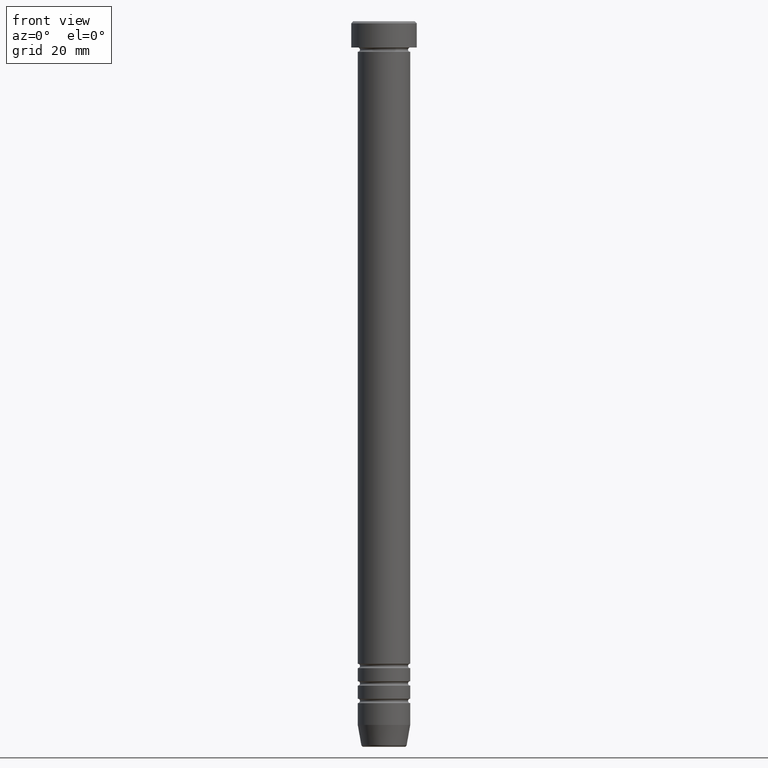
[diagram: clean part render]
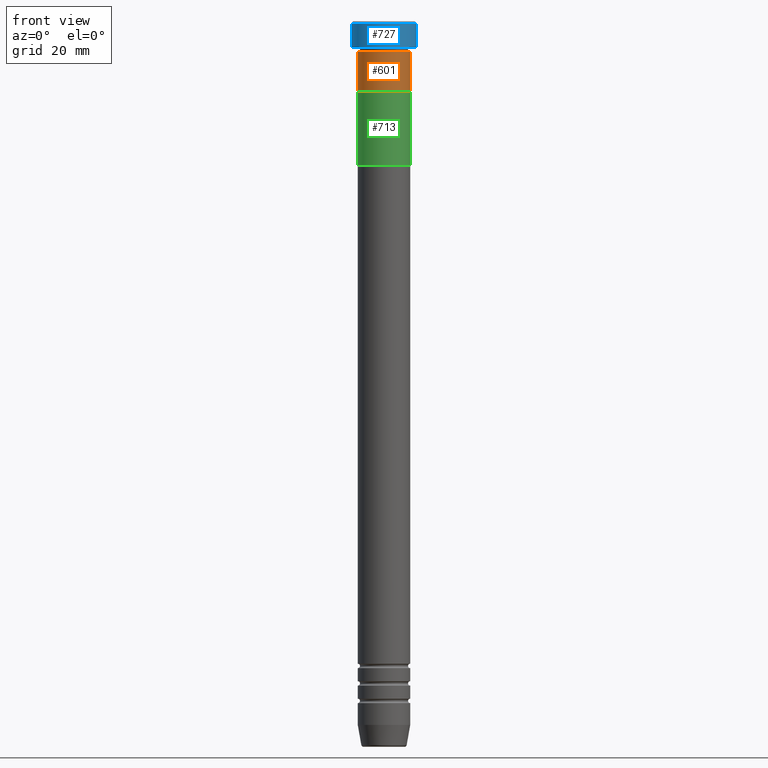
[diagram: same view with three faces highlighted in distinct colors, each labeled with its STEP entity id]
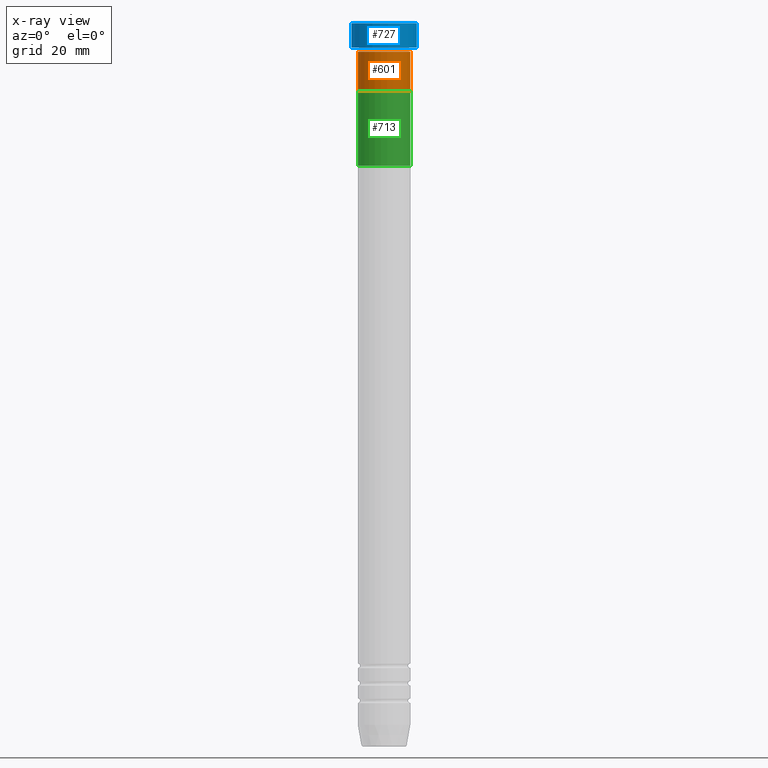
[diagram: x-ray of the same camera — body ghosted, the three highlighted faces saturated]
A machine part, front view with three faces highlighted in distinct colors.
The next image is the same camera in x-ray (body ghosted, the three faces saturated) — at least one of them is partly hidden behind the body in this view.
Their STEP definitions:

[orange] entity #601 — the highlighted cylindrical surface (edge-blend (fillet) strip) has radius 6 mm, axis along (-0, -0, 1).
#44 = AXIS2_PLACEMENT_3D ( 'NONE', #441, #325, #671 ) ;
#78 = CARTESIAN_POINT ( 'NONE',  ( -6.000000000000000000, 7.347880794884119736E-16, 0.000000000000000000 ) ) ;
#128 = EDGE_LOOP ( 'NONE', ( #793, #964, #180, #500 ) ) ;
#154 = EDGE_CURVE ( 'NONE', #462, #562, #829, .T. ) ;
#156 = LINE ( 'NONE', #505, #396 ) ;
#160 = VERTEX_POINT ( 'NONE', #1127 ) ;
#180 = ORIENTED_EDGE ( 'NONE', *, *, #595, .T. ) ;
#197 = DIRECTION ( 'NONE',  ( -0.000000000000000000, -0.000000000000000000, 1.000000000000000000 ) ) ;
#231 = CIRCLE ( 'NONE', #44, 6.000000000000000000 ) ;
#234 = VECTOR ( 'NONE', #197, 1000.000000000000000 ) ;
#269 = CARTESIAN_POINT ( 'NONE',  ( 6.000000000000000000, 0.000000000000000000, -7.000000000000000888 ) ) ;
#279 = DIRECTION ( 'NONE',  ( 1.000000000000000000, 0.000000000000000000, 0.000000000000000000 ) ) ;
#283 = AXIS2_PLACEMENT_3D ( 'NONE', #390, #646, #1035 ) ;
#286 = AXIS2_PLACEMENT_3D ( 'NONE', #438, #905, #279 ) ;
#325 = DIRECTION ( 'NONE',  ( -0.000000000000000000, -0.000000000000000000, 1.000000000000000000 ) ) ;
#390 = CARTESIAN_POINT ( 'NONE',  ( 0.000000000000000000, 0.000000000000000000, -16.00000000000000000 ) ) ;
#396 = VECTOR ( 'NONE', #855, 1000.000000000000000 ) ;
#408 = CARTESIAN_POINT ( 'NONE',  ( -6.000000000000000000, 7.347880794884119736E-16, -16.00000000000000000 ) ) ;
#438 = CARTESIAN_POINT ( 'NONE',  ( 0.000000000000000000, 0.000000000000000000, 0.000000000000000000 ) ) ;
#441 = CARTESIAN_POINT ( 'NONE',  ( 0.000000000000000000, 0.000000000000000000, -7.000000000000000888 ) ) ;
#462 = VERTEX_POINT ( 'NONE', #408 ) ;
#500 = ORIENTED_EDGE ( 'NONE', *, *, #580, .F. ) ;
#505 = CARTESIAN_POINT ( 'NONE',  ( 6.000000000000000000, 0.000000000000000000, 0.000000000000000000 ) ) ;
#519 = LINE ( 'NONE', #78, #234 ) ;
#527 = CYLINDRICAL_SURFACE ( 'NONE', #286, 6.000000000000000000 ) ;
#562 = VERTEX_POINT ( 'NONE', #1063 ) ;
#576 = VERTEX_POINT ( 'NONE', #269 ) ;
#580 = EDGE_CURVE ( 'NONE', #160, #576, #231, .T. ) ;
#595 = EDGE_CURVE ( 'NONE', #562, #576, #156, .T. ) ;
#601 = ADVANCED_FACE ( 'NONE', ( #1081 ), #527, .T. ) ;
#646 = DIRECTION ( 'NONE',  ( -0.000000000000000000, -0.000000000000000000, 1.000000000000000000 ) ) ;
#671 = DIRECTION ( 'NONE',  ( 1.000000000000000000, 0.000000000000000000, 0.000000000000000000 ) ) ;
#793 = ORIENTED_EDGE ( 'NONE', *, *, #1038, .F. ) ;
#829 = CIRCLE ( 'NONE', #283, 6.000000000000000000 ) ;
#855 = DIRECTION ( 'NONE',  ( -0.000000000000000000, -0.000000000000000000, 1.000000000000000000 ) ) ;
#905 = DIRECTION ( 'NONE',  ( -0.000000000000000000, -0.000000000000000000, 1.000000000000000000 ) ) ;
#964 = ORIENTED_EDGE ( 'NONE', *, *, #154, .T. ) ;
#1035 = DIRECTION ( 'NONE',  ( 1.000000000000000000, 0.000000000000000000, 0.000000000000000000 ) ) ;
#1038 = EDGE_CURVE ( 'NONE', #462, #160, #519, .T. ) ;
#1063 = CARTESIAN_POINT ( 'NONE',  ( 6.000000000000000000, 0.000000000000000000, -16.00000000000000000 ) ) ;
#1081 = FACE_OUTER_BOUND ( 'NONE', #128, .T. ) ;
#1127 = CARTESIAN_POINT ( 'NONE',  ( -6.000000000000000000, 7.347880794884119736E-16, -7.000000000000000888 ) ) ;

[blue] entity #727 — the highlighted cylindrical surface (edge-blend (fillet) strip) has radius 7.5 mm, axis along (-0, -0, 1).
#5 = EDGE_CURVE ( 'NONE', #509, #1141, #511, .T. ) ;
#58 = FACE_OUTER_BOUND ( 'NONE', #523, .T. ) ;
#113 = AXIS2_PLACEMENT_3D ( 'NONE', #679, #244, #581 ) ;
#142 = DIRECTION ( 'NONE',  ( -0.000000000000000000, -0.000000000000000000, 1.000000000000000000 ) ) ;
#164 = CARTESIAN_POINT ( 'NONE',  ( -7.500000000000000000, 9.184850993605147944E-16, -6.000000000000000000 ) ) ;
#182 = DIRECTION ( 'NONE',  ( 0.000000000000000000, 0.000000000000000000, -1.000000000000000000 ) ) ;
#198 = EDGE_CURVE ( 'NONE', #509, #481, #1135, .T. ) ;
#244 = DIRECTION ( 'NONE',  ( -0.000000000000000000, -0.000000000000000000, 1.000000000000000000 ) ) ;
#308 = ORIENTED_EDGE ( 'NONE', *, *, #5, .T. ) ;
#348 = CARTESIAN_POINT ( 'NONE',  ( 7.500000000000000000, 0.000000000000000000, -0.4999999999999987232 ) ) ;
#402 = LINE ( 'NONE', #755, #848 ) ;
#416 = CARTESIAN_POINT ( 'NONE',  ( -7.500000000000000000, 9.184850993605147944E-16, 0.000000000000000000 ) ) ;
#481 = VERTEX_POINT ( 'NONE', #669 ) ;
#494 = CYLINDRICAL_SURFACE ( 'NONE', #113, 7.500000000000000000 ) ;
#498 = CIRCLE ( 'NONE', #1121, 7.500000000000000000 ) ;
#509 = VERTEX_POINT ( 'NONE', #164 ) ;
#511 = CIRCLE ( 'NONE', #648, 7.500000000000000000 ) ;
#523 = EDGE_LOOP ( 'NONE', ( #822, #308, #897, #1101 ) ) ;
#534 = EDGE_CURVE ( 'NONE', #879, #481, #498, .T. ) ;
#581 = DIRECTION ( 'NONE',  ( 1.000000000000000000, 0.000000000000000000, 0.000000000000000000 ) ) ;
#622 = CARTESIAN_POINT ( 'NONE',  ( 7.500000000000000000, 0.000000000000000000, -6.000000000000000000 ) ) ;
#648 = AXIS2_PLACEMENT_3D ( 'NONE', #1020, #838, #828 ) ;
#669 = CARTESIAN_POINT ( 'NONE',  ( -7.500000000000000000, 9.184850993605147944E-16, -0.4999999999999987232 ) ) ;
#679 = CARTESIAN_POINT ( 'NONE',  ( 0.000000000000000000, 0.000000000000000000, 0.000000000000000000 ) ) ;
#691 = DIRECTION ( 'NONE',  ( -0.000000000000000000, -0.000000000000000000, 1.000000000000000000 ) ) ;
#692 = CARTESIAN_POINT ( 'NONE',  ( 0.000000000000000000, 0.000000000000000000, -0.4999999999999987232 ) ) ;
#727 = ADVANCED_FACE ( 'NONE', ( #58 ), #494, .T. ) ;
#750 = EDGE_CURVE ( 'NONE', #1141, #879, #402, .T. ) ;
#755 = CARTESIAN_POINT ( 'NONE',  ( 7.500000000000000000, 0.000000000000000000, 0.000000000000000000 ) ) ;
#822 = ORIENTED_EDGE ( 'NONE', *, *, #198, .F. ) ;
#828 = DIRECTION ( 'NONE',  ( 1.000000000000000000, 0.000000000000000000, 0.000000000000000000 ) ) ;
#838 = DIRECTION ( 'NONE',  ( -0.000000000000000000, -0.000000000000000000, 1.000000000000000000 ) ) ;
#848 = VECTOR ( 'NONE', #142, 1000.000000000000000 ) ;
#879 = VERTEX_POINT ( 'NONE', #348 ) ;
#897 = ORIENTED_EDGE ( 'NONE', *, *, #750, .T. ) ;
#982 = DIRECTION ( 'NONE',  ( 1.000000000000000000, 0.000000000000000000, 0.000000000000000000 ) ) ;
#985 = VECTOR ( 'NONE', #691, 1000.000000000000000 ) ;
#1020 = CARTESIAN_POINT ( 'NONE',  ( 0.000000000000000000, 0.000000000000000000, -6.000000000000000000 ) ) ;
#1101 = ORIENTED_EDGE ( 'NONE', *, *, #534, .T. ) ;
#1121 = AXIS2_PLACEMENT_3D ( 'NONE', #692, #182, #982 ) ;
#1135 = LINE ( 'NONE', #416, #985 ) ;
#1141 = VERTEX_POINT ( 'NONE', #622 ) ;

[green] entity #713 — the highlighted cylindrical surface (edge-blend (fillet) strip) has radius 6 mm, axis along (-0, -0, 1).
#14 = VERTEX_POINT ( 'NONE', #1138 ) ;
#19 = CARTESIAN_POINT ( 'NONE',  ( 6.000000000000000888, 0.000000000000000000, -16.00000000000000000 ) ) ;
#27 = DIRECTION ( 'NONE',  ( -1.000000000000000000, 0.000000000000000000, 0.000000000000000000 ) ) ;
#53 = DIRECTION ( 'NONE',  ( -0.000000000000000000, -0.000000000000000000, 1.000000000000000000 ) ) ;
#64 = CARTESIAN_POINT ( 'NONE',  ( 0.000000000000000000, 0.000000000000000000, -33.00000000000000000 ) ) ;
#143 = CARTESIAN_POINT ( 'NONE',  ( -6.000000000000000888, 7.347880794884120722E-16, -33.00000000000000000 ) ) ;
#300 = DIRECTION ( 'NONE',  ( 0.000000000000000000, 0.000000000000000000, -1.000000000000000000 ) ) ;
#320 = ORIENTED_EDGE ( 'NONE', *, *, #921, .T. ) ;
#331 = DIRECTION ( 'NONE',  ( 1.000000000000000000, 0.000000000000000000, 0.000000000000000000 ) ) ;
#338 = AXIS2_PLACEMENT_3D ( 'NONE', #64, #1051, #331 ) ;
#376 = CARTESIAN_POINT ( 'NONE',  ( 6.000000000000000888, 0.000000000000000000, -33.00000000000000000 ) ) ;
#393 = EDGE_CURVE ( 'NONE', #682, #986, #571, .T. ) ;
#413 = CIRCLE ( 'NONE', #765, 6.000000000000000888 ) ;
#478 = EDGE_CURVE ( 'NONE', #986, #14, #579, .T. ) ;
#545 = DIRECTION ( 'NONE',  ( -0.000000000000000000, -0.000000000000000000, 1.000000000000000000 ) ) ;
#554 = VECTOR ( 'NONE', #53, 1000.000000000000000 ) ;
#559 = ORIENTED_EDGE ( 'NONE', *, *, #478, .F. ) ;
#571 = CIRCLE ( 'NONE', #624, 6.000000000000000888 ) ;
#579 = LINE ( 'NONE', #143, #554 ) ;
#624 = AXIS2_PLACEMENT_3D ( 'NONE', #1111, #300, #820 ) ;
#630 = CARTESIAN_POINT ( 'NONE',  ( -6.000000000000000888, 7.347880794884120722E-16, -33.00000000000000000 ) ) ;
#682 = VERTEX_POINT ( 'NONE', #859 ) ;
#713 = ADVANCED_FACE ( 'NONE', ( #852 ), #937, .T. ) ;
#740 = ORIENTED_EDGE ( 'NONE', *, *, #393, .F. ) ;
#748 = VECTOR ( 'NONE', #545, 1000.000000000000000 ) ;
#765 = AXIS2_PLACEMENT_3D ( 'NONE', #1082, #901, #27 ) ;
#810 = LINE ( 'NONE', #376, #748 ) ;
#820 = DIRECTION ( 'NONE',  ( -1.000000000000000000, 0.000000000000000000, 0.000000000000000000 ) ) ;
#826 = EDGE_LOOP ( 'NONE', ( #559, #740, #830, #320 ) ) ;
#830 = ORIENTED_EDGE ( 'NONE', *, *, #854, .T. ) ;
#852 = FACE_OUTER_BOUND ( 'NONE', #826, .T. ) ;
#854 = EDGE_CURVE ( 'NONE', #682, #902, #810, .T. ) ;
#859 = CARTESIAN_POINT ( 'NONE',  ( 6.000000000000000888, 0.000000000000000000, -33.00000000000000000 ) ) ;
#901 = DIRECTION ( 'NONE',  ( 0.000000000000000000, 0.000000000000000000, -1.000000000000000000 ) ) ;
#902 = VERTEX_POINT ( 'NONE', #19 ) ;
#921 = EDGE_CURVE ( 'NONE', #902, #14, #413, .T. ) ;
#937 = CYLINDRICAL_SURFACE ( 'NONE', #338, 6.000000000000000888 ) ;
#986 = VERTEX_POINT ( 'NONE', #630 ) ;
#1051 = DIRECTION ( 'NONE',  ( -0.000000000000000000, -0.000000000000000000, 1.000000000000000000 ) ) ;
#1082 = CARTESIAN_POINT ( 'NONE',  ( 0.000000000000000000, 0.000000000000000000, -16.00000000000000000 ) ) ;
#1111 = CARTESIAN_POINT ( 'NONE',  ( 0.000000000000000000, 0.000000000000000000, -33.00000000000000000 ) ) ;
#1138 = CARTESIAN_POINT ( 'NONE',  ( -6.000000000000000888, 7.347880794884120722E-16, -16.00000000000000000 ) ) ;